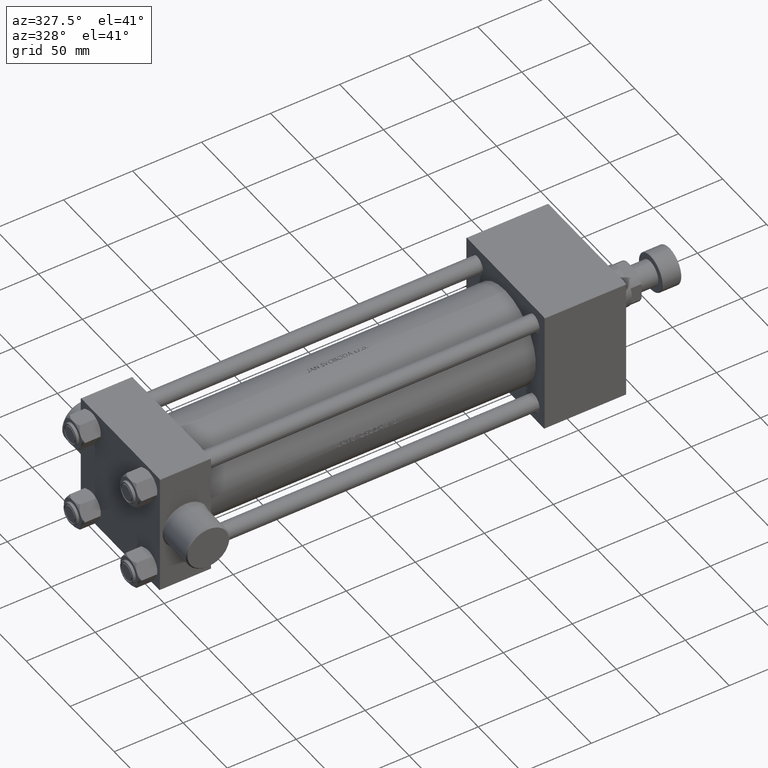
[diagram: clean part render]
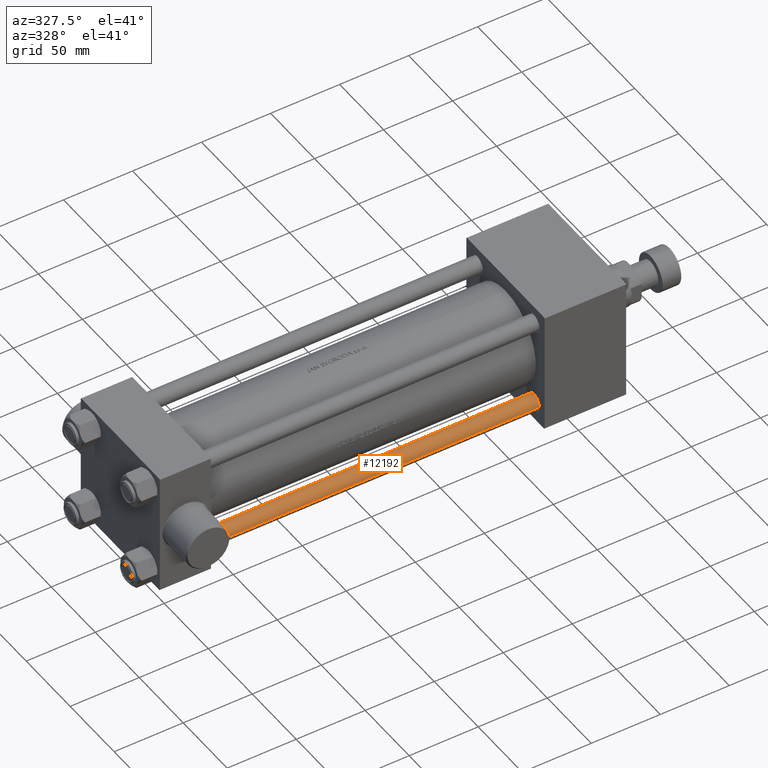
[diagram: same view with one face highlighted and labeled with its STEP entity id]
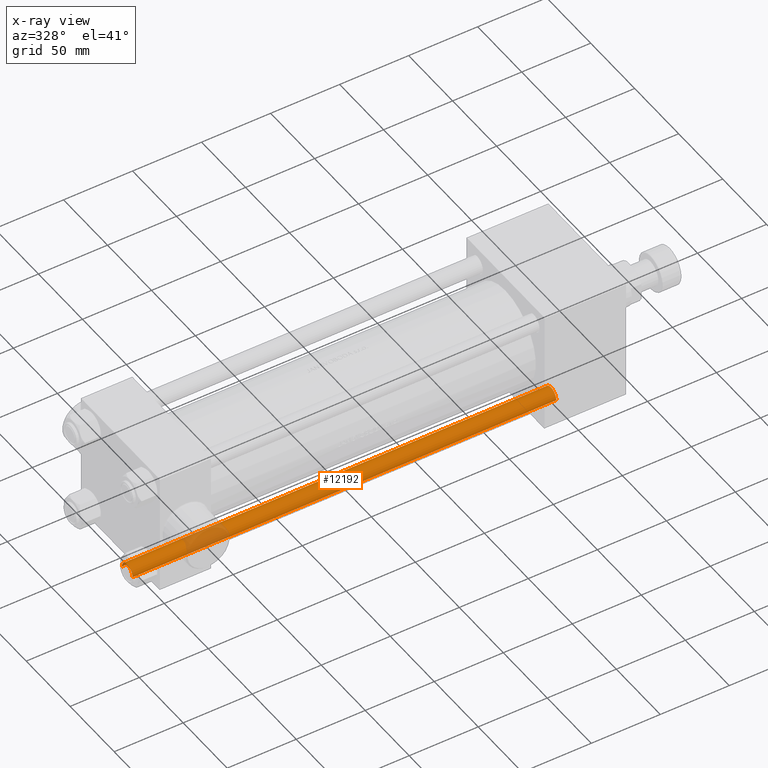
[diagram: x-ray of the same camera — body ghosted, the highlighted face saturated]
A machine part, auxiliary view. The second image highlights one B-rep face of the part: STEP entity #12192.
The next image is the same camera in x-ray: the body ghosted, the highlighted face saturated — about 10% of this face is hidden behind the body in this view.
In plain terms, the highlighted cylindrical surface (edge-blend (fillet) strip) has radius 6 mm, axis along (-1, 0, 0).
Its self-contained STEP definition (entity closure, byte-faithful):
#3402 = VECTOR ( 'NONE', #17827, 1000.000000000000000 ) ;
#4069 = CARTESIAN_POINT ( 'NONE',  ( -6.000000000000000888, 0.000000000000000000, 307.4999999999999432 ) ) ;
#4287 = AXIS2_PLACEMENT_3D ( 'NONE', #4480, #24635, #10465 ) ;
#4480 = CARTESIAN_POINT ( 'NONE',  ( 0.000000000000000000, 0.000000000000000000, 0.5000000000000559552 ) ) ;
#5096 = ORIENTED_EDGE ( 'NONE', *, *, #41131, .F. ) ;
#5115 = VERTEX_POINT ( 'NONE', #22510 ) ;
#5357 = FACE_OUTER_BOUND ( 'NONE', #32250, .T. ) ;
#7208 = DIRECTION ( 'NONE',  ( 0.000000000000000000, 0.000000000000000000, -1.000000000000000000 ) ) ;
#8582 = ORIENTED_EDGE ( 'NONE', *, *, #46048, .T. ) ;
#8714 = CARTESIAN_POINT ( 'NONE',  ( 6.000000000000000888, 7.347880794884120722E-16, 308.0000000000000000 ) ) ;
#10465 = DIRECTION ( 'NONE',  ( 1.000000000000000000, 0.000000000000000000, 0.000000000000000000 ) ) ;
#12192 = ADVANCED_FACE ( 'NONE', ( #5357 ), #34402, .T. ) ;
#13862 = CARTESIAN_POINT ( 'NONE',  ( 6.000000000000000888, 7.347880794884120722E-16, 0.5000000000000559552 ) ) ;
#14466 = ORIENTED_EDGE ( 'NONE', *, *, #32876, .T. ) ;
#14511 = DIRECTION ( 'NONE',  ( 1.000000000000000000, 0.000000000000000000, 0.000000000000000000 ) ) ;
#15152 = CARTESIAN_POINT ( 'NONE',  ( -6.000000000000000888, 0.000000000000000000, 0.5000000000000559552 ) ) ;
#15176 = ORIENTED_EDGE ( 'NONE', *, *, #25928, .T. ) ;
#17827 = DIRECTION ( 'NONE',  ( -0.000000000000000000, -0.000000000000000000, -1.000000000000000000 ) ) ;
#19591 = AXIS2_PLACEMENT_3D ( 'NONE', #33939, #19755, #37479 ) ;
#19755 = DIRECTION ( 'NONE',  ( -0.000000000000000000, -0.000000000000000000, -1.000000000000000000 ) ) ;
#20343 = VERTEX_POINT ( 'NONE', #13862 ) ;
#20668 = CARTESIAN_POINT ( 'NONE',  ( 0.000000000000000000, 0.000000000000000000, 307.4999999999999432 ) ) ;
#21598 = CARTESIAN_POINT ( 'NONE',  ( -6.000000000000000888, 0.000000000000000000, 308.0000000000000000 ) ) ;
#22510 = CARTESIAN_POINT ( 'NONE',  ( 6.000000000000000888, 7.347880794884120722E-16, 307.4999999999999432 ) ) ;
#24635 = DIRECTION ( 'NONE',  ( -0.000000000000000000, -0.000000000000000000, 1.000000000000000000 ) ) ;
#25928 = EDGE_CURVE ( 'NONE', #5115, #20343, #41082, .T. ) ;
#26169 = CIRCLE ( 'NONE', #4287, 6.000000000000000888 ) ;
#26676 = AXIS2_PLACEMENT_3D ( 'NONE', #20668, #7208, #14511 ) ;
#26715 = VERTEX_POINT ( 'NONE', #15152 ) ;
#26836 = VERTEX_POINT ( 'NONE', #4069 ) ;
#28233 = LINE ( 'NONE', #21598, #3402 ) ;
#32250 = EDGE_LOOP ( 'NONE', ( #14466, #15176, #8582, #5096 ) ) ;
#32876 = EDGE_CURVE ( 'NONE', #26836, #5115, #42519, .T. ) ;
#33744 = DIRECTION ( 'NONE',  ( -0.000000000000000000, -0.000000000000000000, -1.000000000000000000 ) ) ;
#33939 = CARTESIAN_POINT ( 'NONE',  ( 0.000000000000000000, 0.000000000000000000, 308.0000000000000000 ) ) ;
#34402 = CYLINDRICAL_SURFACE ( 'NONE', #19591, 6.000000000000000888 ) ;
#37479 = DIRECTION ( 'NONE',  ( -1.000000000000000000, 0.000000000000000000, 0.000000000000000000 ) ) ;
#41082 = LINE ( 'NONE', #8714, #41792 ) ;
#41131 = EDGE_CURVE ( 'NONE', #26836, #26715, #28233, .T. ) ;
#41792 = VECTOR ( 'NONE', #33744, 1000.000000000000000 ) ;
#42519 = CIRCLE ( 'NONE', #26676, 6.000000000000000888 ) ;
#46048 = EDGE_CURVE ( 'NONE', #20343, #26715, #26169, .T. ) ;